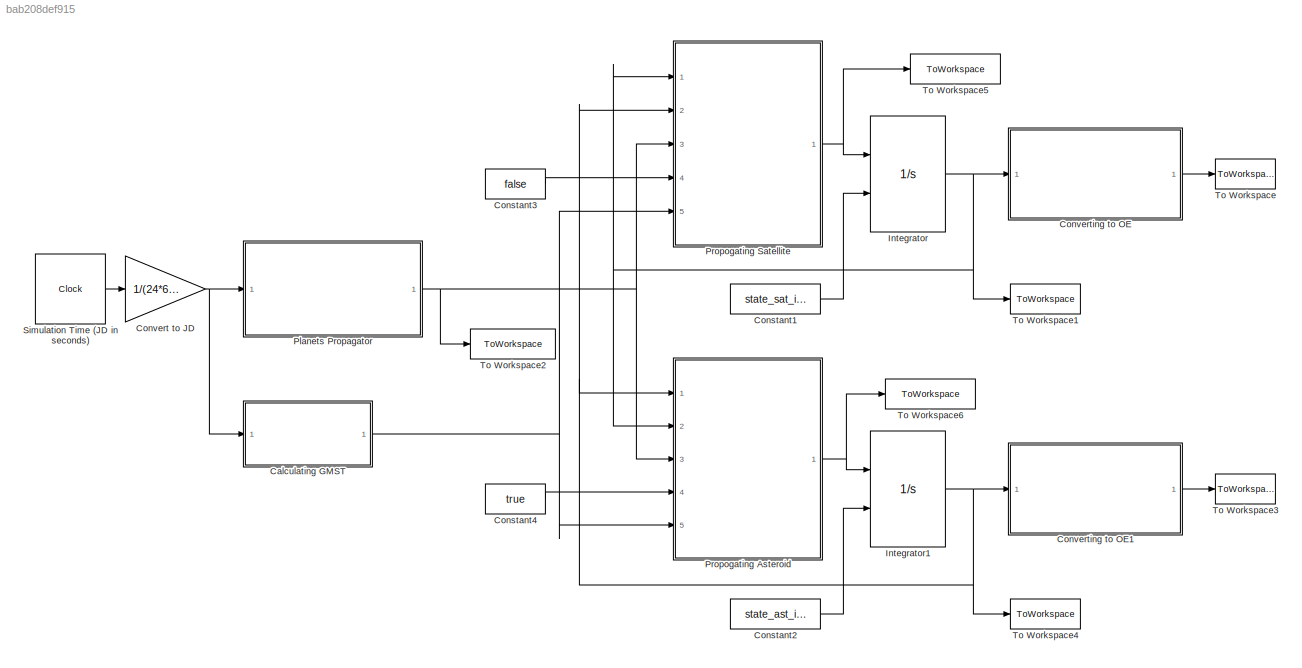
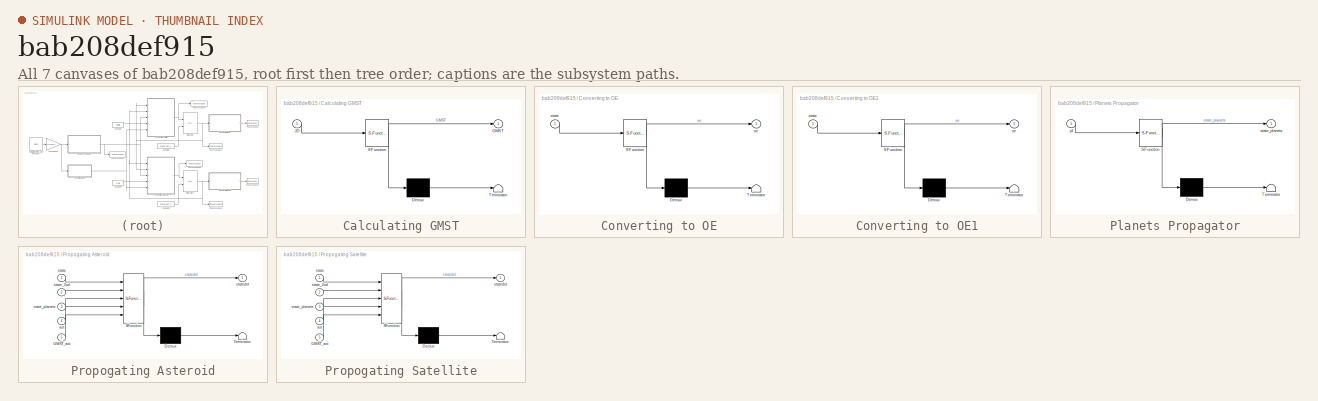
[diagram: thumbnail index - all 7 canvases of the model, root first then tree order]
MODEL slx_bab208def915
KIND model
CONFIG AbsTol = 1e-12
CONFIG EnableMultiTasking = on
CONFIG FixedStep = 3600
CONFIG MaxStep = stepsize
CONFIG MinStep = auto
CONFIG RelTol = 1e-9
CONFIG SampleTimeConstraint = Unconstrained
CONFIG Solver = ode4
CONFIG SolverName = ode4
CONFIG StartTime = jd_start
CONFIG StopTime = jd_end
BLOCK [SubSystem] Calculating GMST
  ErrorFcn = Stateflow.Translate.translate
  PermitHierarchicalResolution = ExplicitOnly
  Ports = [1, 1]
  RequestExecContextInheritance = off
  SFBlockType = MATLAB Function
  TreatAsAtomicUnit = on
BLOCK [Demux] Calculating GMST/ Demux 
  Outputs = 1
  Ports = [1, 1]
BLOCK [S-Function] Calculating GMST/ SFunction 
  EnableBusSupport = off
  FunctionName = sf_sfun
  PortCounts = [1 2]
  Ports = [1, 2]
  SFcnIsStateOwnerBlock = off
  SFunctionDeploymentMode = off
  Tag = Stateflow S-Function Propagator 6
BLOCK [Terminator] Calculating GMST/ Terminator 
BLOCK [Outport] Calculating GMST/GMST
  IconDisplay = Port number
BLOCK [Inport] Calculating GMST/JD
  IconDisplay = Port number
BLOCK [Constant] Constant1
  Value = state_sat_initial
BLOCK [Constant] Constant2
  Value = state_ast_initial
BLOCK [Constant] Constant3
  Value = false
BLOCK [Constant] Constant4
  Value = true
BLOCK [Gain] Convert to JD
  Gain = 1/(24*60*60)
  OutDataTypeStr = Inherit: Inherit via internal rule
  ParamDataTypeStr = Inherit: Inherit via internal rule
  SaturateOnIntegerOverflow = off
BLOCK [SubSystem] Converting to OE
  ErrorFcn = Stateflow.Translate.translate
  PermitHierarchicalResolution = ExplicitOnly
  Ports = [1, 1]
  RequestExecContextInheritance = off
  SFBlockType = MATLAB Function
  TreatAsAtomicUnit = on
BLOCK [Demux] Converting to OE/ Demux 
  Outputs = 1
  Ports = [1, 1]
BLOCK [S-Function] Converting to OE/ SFunction 
  EnableBusSupport = off
  FunctionName = sf_sfun
  PortCounts = [1 2]
  Ports = [1, 2]
  SFcnIsStateOwnerBlock = off
  SFunctionDeploymentMode = off
  Tag = Stateflow S-Function Propagator 1
BLOCK [Terminator] Converting to OE/ Terminator 
BLOCK [Outport] Converting to OE/oe
  IconDisplay = Port number
BLOCK [Inport] Converting to OE/state
  IconDisplay = Port number
BLOCK [SubSystem] Converting to OE1
  ErrorFcn = Stateflow.Translate.translate
  PermitHierarchicalResolution = ExplicitOnly
  Ports = [1, 1]
  RequestExecContextInheritance = off
  SFBlockType = MATLAB Function
  TreatAsAtomicUnit = on
BLOCK [Demux] Converting to OE1/ Demux 
  Outputs = 1
  Ports = [1, 1]
BLOCK [S-Function] Converting to OE1/ SFunction 
  EnableBusSupport = off
  FunctionName = sf_sfun
  PortCounts = [1 2]
  Ports = [1, 2]
  SFcnIsStateOwnerBlock = off
  SFunctionDeploymentMode = off
  Tag = Stateflow S-Function Propagator 4
BLOCK [Terminator] Converting to OE1/ Terminator 
BLOCK [Outport] Converting to OE1/oe
  IconDisplay = Port number
BLOCK [Inport] Converting to OE1/state
  IconDisplay = Port number
BLOCK [Integrator] Integrator
  InitialConditionSource = external
  Ports = [2, 1]
BLOCK [Integrator] Integrator1
  InitialConditionSource = external
  Ports = [2, 1]
BLOCK [SubSystem] Planets Propagator
  ErrorFcn = Stateflow.Translate.translate
  PermitHierarchicalResolution = ExplicitOnly
  Ports = [1, 1]
  RequestExecContextInheritance = off
  SFBlockType = MATLAB Function
  TreatAsAtomicUnit = on
BLOCK [Demux] Planets Propagator/ Demux 
  Outputs = 1
  Ports = [1, 1]
BLOCK [S-Function] Planets Propagator/ SFunction 
  EnableBusSupport = off
  FunctionName = sf_sfun
  PortCounts = [1 2]
  Ports = [1, 2]
  SFcnIsStateOwnerBlock = off
  SFunctionDeploymentMode = off
  Tag = Stateflow S-Function Propagator 3
BLOCK [Terminator] Planets Propagator/ Terminator 
BLOCK [Inport] Planets Propagator/jd
  IconDisplay = Port number
BLOCK [Outport] Planets Propagator/state_planets
  IconDisplay = Port number
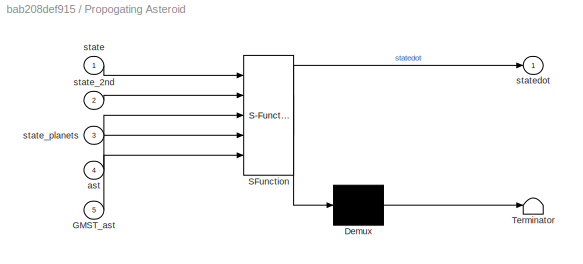
BLOCK [SubSystem] Propogating Asteroid
  ErrorFcn = Stateflow.Translate.translate
  PermitHierarchicalResolution = ExplicitOnly
  Ports = [5, 1]
  RequestExecContextInheritance = off
  SFBlockType = MATLAB Function
  TreatAsAtomicUnit = on
BLOCK [Demux] Propogating Asteroid/ Demux 
  Outputs = 1
  Ports = [1, 1]
BLOCK [S-Function] Propogating Asteroid/ SFunction 
  EnableBusSupport = off
  FunctionName = sf_sfun
  PortCounts = [5 2]
  Ports = [5, 2]
  SFcnIsStateOwnerBlock = off
  SFunctionDeploymentMode = off
  Tag = Stateflow S-Function Propagator 5
BLOCK [Terminator] Propogating Asteroid/ Terminator 
BLOCK [Inport] Propogating Asteroid/GMST_ast
  IconDisplay = Port number
  Port = 5
BLOCK [Inport] Propogating Asteroid/ast
  IconDisplay = Port number
  Port = 4
BLOCK [Inport] Propogating Asteroid/state
  IconDisplay = Port number
BLOCK [Inport] Propogating Asteroid/state_2nd
  IconDisplay = Port number
  Port = 2
BLOCK [Inport] Propogating Asteroid/state_planets
  IconDisplay = Port number
  Port = 3
BLOCK [Outport] Propogating Asteroid/statedot
  IconDisplay = Port number
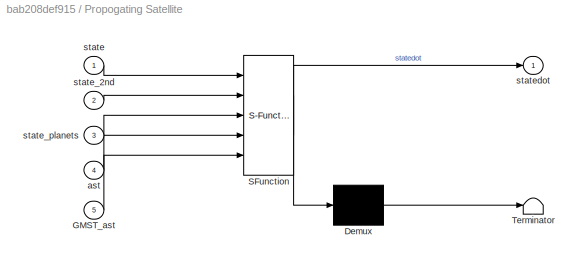
BLOCK [SubSystem] Propogating Satellite
  ErrorFcn = Stateflow.Translate.translate
  PermitHierarchicalResolution = ExplicitOnly
  Ports = [5, 1]
  RequestExecContextInheritance = off
  SFBlockType = MATLAB Function
  TreatAsAtomicUnit = on
BLOCK [Demux] Propogating Satellite/ Demux 
  Outputs = 1
  Ports = [1, 1]
BLOCK [S-Function] Propogating Satellite/ SFunction 
  EnableBusSupport = off
  FunctionName = sf_sfun
  PortCounts = [5 2]
  Ports = [5, 2]
  SFcnIsStateOwnerBlock = off
  SFunctionDeploymentMode = off
  Tag = Stateflow S-Function Propagator 2
BLOCK [Terminator] Propogating Satellite/ Terminator 
BLOCK [Inport] Propogating Satellite/GMST_ast
  IconDisplay = Port number
  Port = 5
BLOCK [Inport] Propogating Satellite/ast
  IconDisplay = Port number
  Port = 4
BLOCK [Inport] Propogating Satellite/state
  IconDisplay = Port number
BLOCK [Inport] Propogating Satellite/state_2nd
  IconDisplay = Port number
  Port = 2
BLOCK [Inport] Propogating Satellite/state_planets
  IconDisplay = Port number
  Port = 3
BLOCK [Outport] Propogating Satellite/statedot
  IconDisplay = Port number
BLOCK [Clock] Simulation Time (JD in seconds)
  DisplayTime = on
BLOCK [ToWorkspace] To Workspace
  FixptAsFi = on
  MaxDataPoints = inf
  Ports = [1]
  SampleTime = -1
  Save2DSignal = 3-D array (concatenate along third dimension)
  VariableName = oe_sat
BLOCK [ToWorkspace] To Workspace1
  FixptAsFi = on
  MaxDataPoints = inf
  Ports = [1]
  SampleTime = -1
  Save2DSignal = 3-D array (concatenate along third dimension)
  VariableName = state_sat
BLOCK [ToWorkspace] To Workspace2
  FixptAsFi = on
  MaxDataPoints = inf
  Ports = [1]
  SampleTime = -1
  Save2DSignal = 3-D array (concatenate along third dimension)
  VariableName = state_planets
BLOCK [ToWorkspace] To Workspace3
  FixptAsFi = on
  MaxDataPoints = inf
  Ports = [1]
  SampleTime = -1
  Save2DSignal = 3-D array (concatenate along third dimension)
  VariableName = oe_ast
BLOCK [ToWorkspace] To Workspace4
  FixptAsFi = on
  MaxDataPoints = inf
  Ports = [1]
  SampleTime = -1
  Save2DSignal = 3-D array (concatenate along third dimension)
  VariableName = state_ast
BLOCK [ToWorkspace] To Workspace5
  FixptAsFi = on
  MaxDataPoints = inf
  Ports = [1]
  SampleTime = -1
  Save2DSignal = 3-D array (concatenate along third dimension)
  VariableName = statedot_sat
BLOCK [ToWorkspace] To Workspace6
  FixptAsFi = on
  MaxDataPoints = inf
  Ports = [1]
  SampleTime = -1
  Save2DSignal = 3-D array (concatenate along third dimension)
  VariableName = statedot_ast
NET Calculating GMST:1 -> Propogating Asteroid:5, Propogating Satellite:5
LINE Constant1:1 -> Integrator:2
LINE Constant2:1 -> Integrator1:2
LINE Constant3:1 -> Propogating Satellite:4
LINE Constant4:1 -> Propogating Asteroid:4
NET Convert to JD:1 -> Calculating GMST:1, Planets Propagator:1
LINE Converting to OE1:1 -> To Workspace3:1
LINE Converting to OE:1 -> To Workspace:1
NET Integrator1:1 -> Converting to OE1:1, Propogating Asteroid:1, Propogating Satellite:2, To Workspace4:1
NET Integrator:1 -> Converting to OE:1, Propogating Asteroid:2, Propogating Satellite:1, To Workspace1:1
NET Planets Propagator:1 -> Propogating Asteroid:3, Propogating Satellite:3, To Workspace2:1
NET Propogating Asteroid:1 -> Integrator1:1, To Workspace6:1
NET Propogating Satellite:1 -> Integrator:1, To Workspace5:1
LINE Simulation Time (JD in seconds):1 -> Convert to JD:1
note: NET lines group one-source signal fan-out (src -> all destinations, sorted); 1:1 wires keep LINE
CHART Converting to OE states=1 transitions=1
  STATE_LABEL 'eML_blk_kernel()'
  STATE_LABEL 'SCRIPT:\nfunction oe = IJKtoOrbitalElements(state)\n\noe = zeros(6, 1);\n\n% Position and Velocity\nrECI = state(1:3);\nvECI = state(4:6);\n\n% Specific Angular Momentum\nGM_Earth = 3.986e5;\nh = cross(rECI, vECI);\nW = h./norm(h);\n\n% Inclination\ni = atan2(norm(W(1:2)), W(3));\n\n% Right Ascension of the Ascending Node\nOmega = atan2(W(1),-W(2));\nif Omega < 0\n    Omega = Omega + 2*pi;\nend\n\n% Semi-Major Axis\na = ...<+581ch>'
CHART Propogating Satellite states=1 transitions=1
  STATE_LABEL 'eML_blk_kernel()'
  STATE_LABEL "SCRIPT:\nfunction statedot = f(state, state_2nd, state_planets, ast, GMST_ast)\n\nX = load('constants.mat');\nstatedot = zeros(6, 1);\n\n% Solar Radiation Pressure\nif ast == false\n    f_srp = accelSRP(state, X.state_sun, state_2nd, X.R_ast,...\n        X.Csrp_sat, X.Msrp_sat, X.Asrp_sat, X.Psrp);\nelse\n    f_srp = accelSRP(state, X.state_sun, state_2nd, 0,...\n        X.Csrp_ast, X.Msrp_ast, X.Asrp_ast, X....<+594ch>"
CHART Planets Propagator states=1 transitions=1
  STATE_LABEL 'eML_blk_kernel()'
  STATE_LABEL "SCRIPT:\nfunction state_planets = statePlanetsUnpertubed(jd)\nstate_planets = zeros(9, 6);\nfor planet_id = 1:9\n    [r, v] = AA279planet_state(planet_id, jd);\n    state_planets(planet_id, :) = [r', v'];\nend\nend\n\nfunction [O_r_P__heli, heli_v_P__heli] = AA279planet_state(planet_id, jd)\n% Returns heliocentric position and velocity of planet at given time\n%\n% AA279 Function Library\n% Last modified: 22 A...<+3608ch>"
CHART Converting to OE1 states=1 transitions=1
  STATE_LABEL 'eML_blk_kernel()'
  STATE_LABEL 'SCRIPT:\nfunction oe = IJKtoOrbitalElements(state)\n\noe = zeros(6, 1);\n\n% Position and Velocity\nrECI = state(1:3);\nvECI = state(4:6);\n\n% Specific Angular Momentum\nGM_Sun = 1.327124400179870e11;\nh = cross(rECI, vECI);\nW = h./norm(h);\n\n% Inclination\ni = atan2(norm(W(1:2)), W(3));\n\n% Right Ascension of the Ascending Node\nOmega = atan2(W(1),-W(2));\nif Omega < 0\n    Omega = Omega + 2*pi;\nend\n\n% Semi-Majo...<+586ch>'
CHART Propogating Asteroid states=1 transitions=1
  STATE_LABEL 'eML_blk_kernel()'
  STATE_LABEL "SCRIPT:\nfunction statedot = f(state, state_2nd, state_planets, ast, GMST_ast)\n\nX = load('constants.mat');\nstatedot = zeros(6, 1);\n\n% Solar Radiation Pressure\nif ast == false\n    f_srp = accelSRP(state, X.state_sun, state_2nd, X.R_ast,...\n        X.Csrp_sat, X.Msrp_sat, X.Asrp_sat, X.Psrp);\nelse\n    f_srp = accelSRP(state, X.state_sun, state_2nd, 0,...\n        X.Csrp_ast, X.Msrp_ast, X.Asrp_ast, X....<+594ch>"
CHART Calculating GMST states=1 transitions=1
  STATE_LABEL 'eML_blk_kernel()'
  STATE_LABEL 'SCRIPT:\nfunction GMST  = JDtoGMST(JD)\nMJD = JD - 2400000.5;\nd = MJD - 51544.5;\n\nGMST = 1639.46869*d;\n%Earth\n%GMST = 280.4606 + 360.9856473*d;\nGMST = mod(GMST, 360);\nend'
